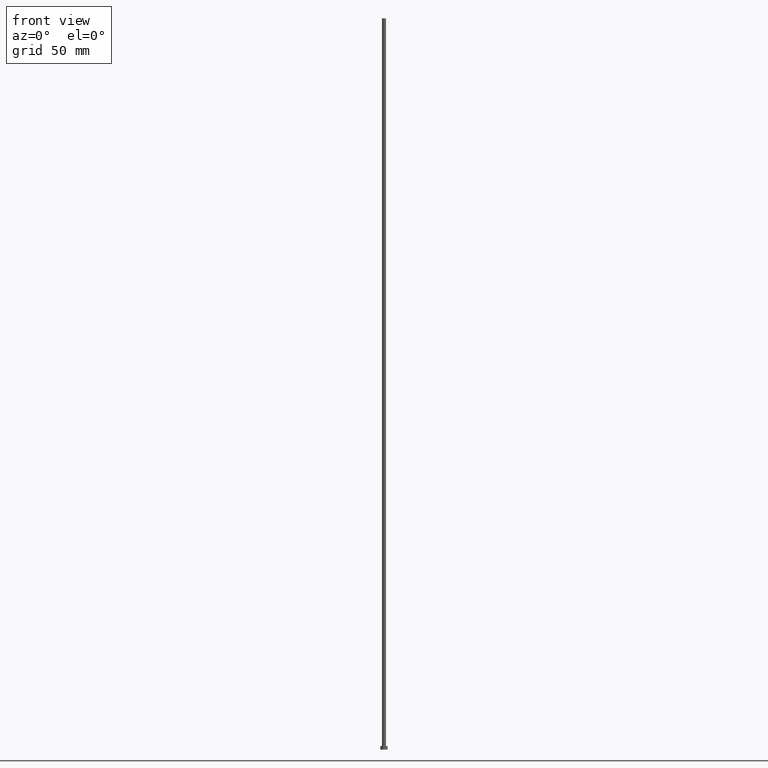
[diagram: clean part render]
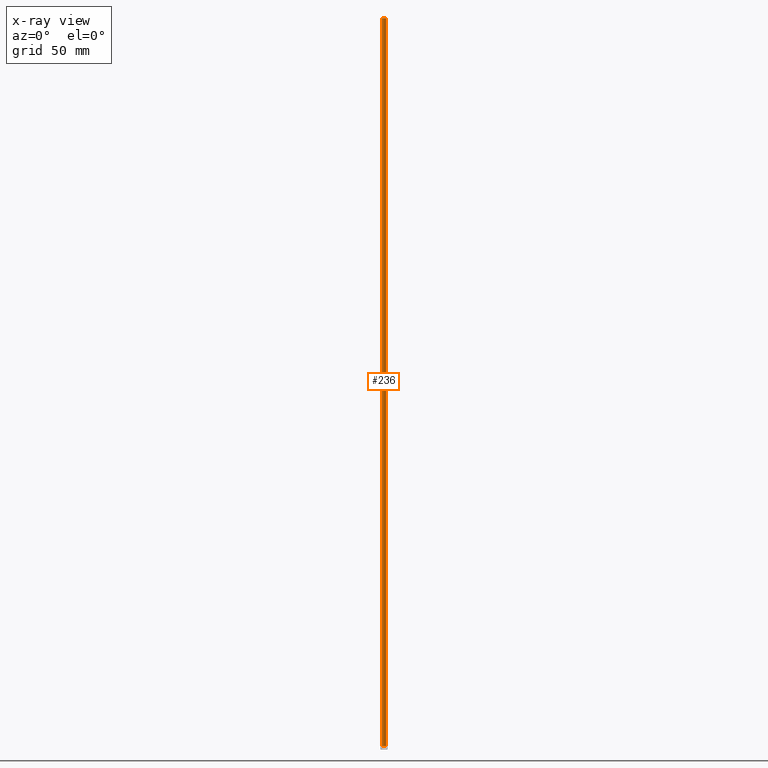
[diagram: x-ray — body ghosted, one internal face saturated and labeled with its STEP entity id]
A machine part, front view, then the same camera in x-ray: the body is ghosted and one INTERNAL B-rep face — a face not visible from any outside direction — is saturated and labeled: STEP entity #236.
In plain terms, the highlighted cylindrical surface (edge-blend (fillet) strip) has radius 1.1 mm, axis along (-0, -0, -1).
Its self-contained STEP definition (entity closure, byte-faithful):
#4 = LINE ( 'NONE', #27, #39 ) ;
#10 = EDGE_CURVE ( 'NONE', #152, #151, #161, .T. ) ;
#11 = CARTESIAN_POINT ( 'NONE',  ( 0.000000000000000000, 0.000000000000000000, 400.0000000000000000 ) ) ;
#13 = DIRECTION ( 'NONE',  ( -0.000000000000000000, -0.000000000000000000, -1.000000000000000000 ) ) ;
#20 = ORIENTED_EDGE ( 'NONE', *, *, #197, .T. ) ;
#27 = CARTESIAN_POINT ( 'NONE',  ( -1.100000000000000089, 0.000000000000000000, 400.0000000000000000 ) ) ;
#39 = VECTOR ( 'NONE', #157, 1000.000000000000000 ) ;
#57 = CYLINDRICAL_SURFACE ( 'NONE', #254, 1.100000000000000089 ) ;
#58 = AXIS2_PLACEMENT_3D ( 'NONE', #154, #116, #174 ) ;
#62 = CARTESIAN_POINT ( 'NONE',  ( -1.100000000000000089, 0.000000000000000000, 2.000000000000000000 ) ) ;
#71 = ORIENTED_EDGE ( 'NONE', *, *, #230, .T. ) ;
#77 = VERTEX_POINT ( 'NONE', #62 ) ;
#78 = CARTESIAN_POINT ( 'NONE',  ( 1.100000000000000089, 1.347111479062088503E-16, 2.000000000000000000 ) ) ;
#93 = ORIENTED_EDGE ( 'NONE', *, *, #189, .F. ) ;
#102 = LINE ( 'NONE', #178, #231 ) ;
#116 = DIRECTION ( 'NONE',  ( 0.000000000000000000, 0.000000000000000000, 1.000000000000000000 ) ) ;
#140 = CARTESIAN_POINT ( 'NONE',  ( -1.100000000000000089, 0.000000000000000000, 400.0000000000000000 ) ) ;
#151 = VERTEX_POINT ( 'NONE', #140 ) ;
#152 = VERTEX_POINT ( 'NONE', #218 ) ;
#154 = CARTESIAN_POINT ( 'NONE',  ( 0.000000000000000000, 0.000000000000000000, 2.000000000000000000 ) ) ;
#157 = DIRECTION ( 'NONE',  ( -0.000000000000000000, -0.000000000000000000, -1.000000000000000000 ) ) ;
#161 = CIRCLE ( 'NONE', #209, 1.100000000000000089 ) ;
#167 = EDGE_LOOP ( 'NONE', ( #171, #20, #71, #93 ) ) ;
#169 = CARTESIAN_POINT ( 'NONE',  ( 0.000000000000000000, 0.000000000000000000, 400.0000000000000000 ) ) ;
#171 = ORIENTED_EDGE ( 'NONE', *, *, #10, .F. ) ;
#174 = DIRECTION ( 'NONE',  ( 1.000000000000000000, 0.000000000000000000, 0.000000000000000000 ) ) ;
#178 = CARTESIAN_POINT ( 'NONE',  ( 1.100000000000000089, 1.347111479062088503E-16, 400.0000000000000000 ) ) ;
#189 = EDGE_CURVE ( 'NONE', #151, #77, #4, .T. ) ;
#197 = EDGE_CURVE ( 'NONE', #152, #235, #102, .T. ) ;
#201 = DIRECTION ( 'NONE',  ( -0.000000000000000000, -0.000000000000000000, -1.000000000000000000 ) ) ;
#207 = DIRECTION ( 'NONE',  ( 0.000000000000000000, 0.000000000000000000, 1.000000000000000000 ) ) ;
#209 = AXIS2_PLACEMENT_3D ( 'NONE', #169, #207, #253 ) ;
#218 = CARTESIAN_POINT ( 'NONE',  ( 1.100000000000000089, 1.347111479062088503E-16, 400.0000000000000000 ) ) ;
#227 = CIRCLE ( 'NONE', #58, 1.100000000000000089 ) ;
#230 = EDGE_CURVE ( 'NONE', #235, #77, #227, .T. ) ;
#231 = VECTOR ( 'NONE', #201, 1000.000000000000000 ) ;
#235 = VERTEX_POINT ( 'NONE', #78 ) ;
#236 = ADVANCED_FACE ( 'NONE', ( #240 ), #57, .T. ) ;
#240 = FACE_OUTER_BOUND ( 'NONE', #167, .T. ) ;
#246 = DIRECTION ( 'NONE',  ( -1.000000000000000000, 0.000000000000000000, 0.000000000000000000 ) ) ;
#253 = DIRECTION ( 'NONE',  ( 1.000000000000000000, 0.000000000000000000, 0.000000000000000000 ) ) ;
#254 = AXIS2_PLACEMENT_3D ( 'NONE', #11, #13, #246 ) ;